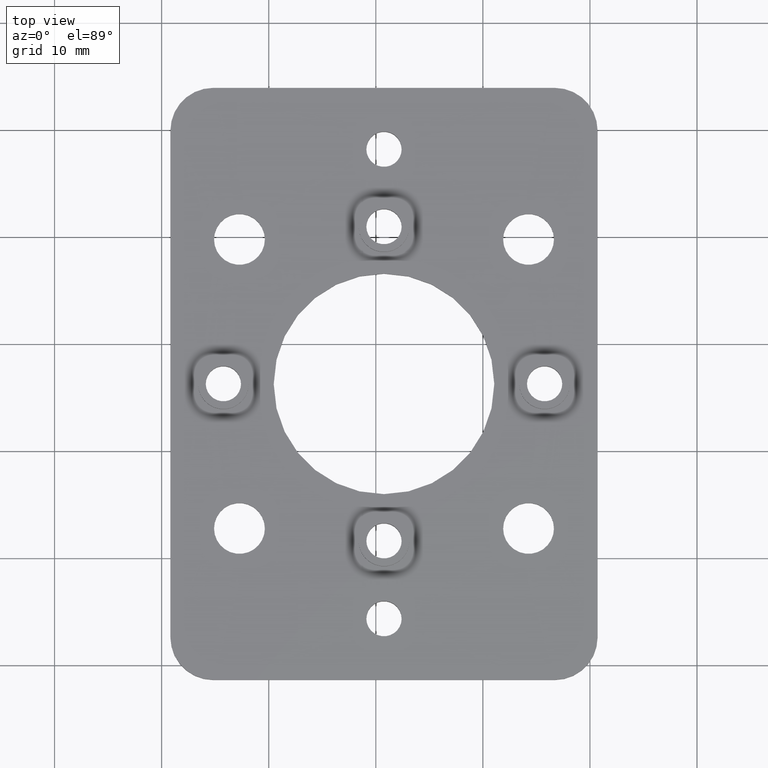
[diagram: clean part render]
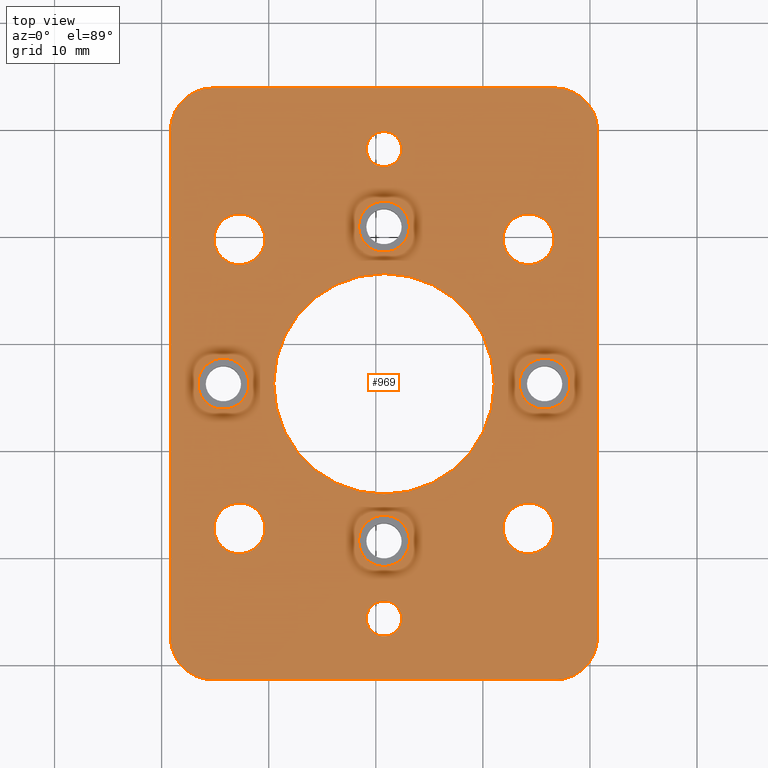
[diagram: same view with one face highlighted and labeled with its STEP entity id]
A machine part, top view. The second image highlights one B-rep face of the part: STEP entity #969.
In plain terms, the highlighted planar face has unit normal (0, 0, 1).
Its self-contained STEP definition (entity closure, byte-faithful):
#84=CARTESIAN_POINT('',(-17.583154132545623,-15.660901912274152,1.550000000000000));
#85=VERTEX_POINT('',#84);
#86=CARTESIAN_POINT('',(-19.233154132545625,-15.660901912274152,1.550000000000000));
#87=DIRECTION('',(0.0,0.0,-1.0));
#88=DIRECTION('',(-1.0,0.0,0.0));
#89=AXIS2_PLACEMENT_3D('',#86,#87,#88);
#90=CIRCLE('',#89,1.650000000000000);
#91=EDGE_CURVE('',#85,#85,#90,.T.);
#112=CARTESIAN_POINT('',(-17.583154132545623,28.189098087725849,1.550000000000000));
#113=VERTEX_POINT('',#112);
#114=CARTESIAN_POINT('',(-19.233154132545625,28.189098087725849,1.550000000000000));
#115=DIRECTION('',(0.0,0.0,-1.0));
#116=DIRECTION('',(-1.0,0.0,0.0));
#117=AXIS2_PLACEMENT_3D('',#114,#115,#116);
#118=CIRCLE('',#117,1.650000000000000);
#119=EDGE_CURVE('',#113,#113,#118,.T.);
#332=CARTESIAN_POINT('',(-1.858154132545627,6.264098087725847,1.550000000000000));
#333=VERTEX_POINT('',#332);
#334=CARTESIAN_POINT('',(-4.233154132545627,6.264098087725847,1.550000000000000));
#335=DIRECTION('',(0.0,0.0,-1.0));
#336=DIRECTION('',(-1.0,0.0,0.0));
#337=AXIS2_PLACEMENT_3D('',#334,#335,#336);
#338=CIRCLE('',#337,2.375000000000000);
#339=EDGE_CURVE('',#333,#333,#338,.T.);
#372=CARTESIAN_POINT('',(-31.858154132545629,6.264098087725847,1.550000000000000));
#373=VERTEX_POINT('',#372);
#374=CARTESIAN_POINT('',(-34.233154132545629,6.264098087725847,1.550000000000000));
#375=DIRECTION('',(0.0,0.0,-1.0));
#376=DIRECTION('',(-1.0,0.0,0.0));
#377=AXIS2_PLACEMENT_3D('',#374,#375,#376);
#378=CIRCLE('',#377,2.375000000000000);
#379=EDGE_CURVE('',#373,#373,#378,.T.);
#412=CARTESIAN_POINT('',(-16.858154132545625,-8.410901912274154,1.550000000000000));
#413=VERTEX_POINT('',#412);
#414=CARTESIAN_POINT('',(-19.233154132545625,-8.410901912274154,1.550000000000000));
#415=DIRECTION('',(0.0,0.0,-1.0));
#416=DIRECTION('',(-1.0,0.0,0.0));
#417=AXIS2_PLACEMENT_3D('',#414,#415,#416);
#418=CIRCLE('',#417,2.375000000000000);
#419=EDGE_CURVE('',#413,#413,#418,.T.);
#452=CARTESIAN_POINT('',(-16.858154132545625,20.939098087725849,1.550000000000000));
#453=VERTEX_POINT('',#452);
#454=CARTESIAN_POINT('',(-19.233154132545625,20.939098087725849,1.550000000000000));
#455=DIRECTION('',(0.0,0.0,-1.0));
#456=DIRECTION('',(-1.0,0.0,0.0));
#457=AXIS2_PLACEMENT_3D('',#454,#455,#456);
#458=CIRCLE('',#457,2.375000000000000);
#459=EDGE_CURVE('',#453,#453,#458,.T.);
#492=CARTESIAN_POINT('',(-8.933154132545624,6.264098087725848,1.550000000000000));
#493=VERTEX_POINT('',#492);
#494=CARTESIAN_POINT('',(-19.233154132545625,6.264098087725847,1.550000000000000));
#495=DIRECTION('',(0.0,0.0,-1.0));
#496=DIRECTION('',(-1.0,0.0,0.0));
#497=AXIS2_PLACEMENT_3D('',#494,#495,#496);
#498=CIRCLE('',#497,10.300000000000001);
#499=EDGE_CURVE('',#493,#493,#498,.T.);
#520=CARTESIAN_POINT('',(-30.358154132545614,-7.235901912274155,1.550000000000000));
#521=VERTEX_POINT('',#520);
#522=CARTESIAN_POINT('',(-32.733154132545614,-7.235901912274155,1.550000000000000));
#523=DIRECTION('',(0.0,0.0,-1.0));
#524=DIRECTION('',(-1.0,0.0,0.0));
#525=AXIS2_PLACEMENT_3D('',#522,#523,#524);
#526=CIRCLE('',#525,2.375000000000000);
#527=EDGE_CURVE('',#521,#521,#526,.T.);
#548=CARTESIAN_POINT('',(-3.358154132545621,-7.235901912274159,1.550000000000000));
#549=VERTEX_POINT('',#548);
#550=CARTESIAN_POINT('',(-5.733154132545622,-7.235901912274159,1.550000000000000));
#551=DIRECTION('',(0.0,0.0,-1.0));
#552=DIRECTION('',(-1.0,0.0,0.0));
#553=AXIS2_PLACEMENT_3D('',#550,#551,#552);
#554=CIRCLE('',#553,2.375000000000000);
#555=EDGE_CURVE('',#549,#549,#554,.T.);
#576=CARTESIAN_POINT('',(-3.358154132545622,19.764098087725838,1.550000000000000));
#577=VERTEX_POINT('',#576);
#578=CARTESIAN_POINT('',(-5.733154132545622,19.764098087725838,1.550000000000000));
#579=DIRECTION('',(0.0,0.0,-1.0));
#580=DIRECTION('',(-1.0,0.0,0.0));
#581=AXIS2_PLACEMENT_3D('',#578,#579,#580);
#582=CIRCLE('',#581,2.375000000000000);
#583=EDGE_CURVE('',#577,#577,#582,.T.);
#604=CARTESIAN_POINT('',(-30.358154132545625,19.764098087725845,1.550000000000000));
#605=VERTEX_POINT('',#604);
#606=CARTESIAN_POINT('',(-32.733154132545621,19.764098087725845,1.550000000000000));
#607=DIRECTION('',(0.0,0.0,-1.0));
#608=DIRECTION('',(-1.0,0.0,0.0));
#609=AXIS2_PLACEMENT_3D('',#606,#607,#608);
#610=CIRCLE('',#609,2.375000000000000);
#611=EDGE_CURVE('',#605,#605,#610,.T.);
#621=CARTESIAN_POINT('',(-35.183154132545631,33.914098087725847,1.550000000000000));
#622=VERTEX_POINT('',#621);
#623=CARTESIAN_POINT('',(-3.283154132545636,33.914098087725847,1.550000000000000));
#624=VERTEX_POINT('',#623);
#625=CARTESIAN_POINT('',(-35.183154132545631,33.914098087725847,1.550000000000000));
#626=DIRECTION('',(1.0,0.0,0.0));
#627=VECTOR('',#626,31.899999999999995);
#628=LINE('',#625,#627);
#629=EDGE_CURVE('',#622,#624,#628,.T.);
#661=CARTESIAN_POINT('',(0.716845867454365,29.914098087725847,1.550000000000000));
#662=VERTEX_POINT('',#661);
#663=CARTESIAN_POINT('',(-3.283154132545636,29.914098087725847,1.550000000000000));
#664=DIRECTION('',(0.0,0.0,-1.0));
#665=DIRECTION('',(1.0,0.0,0.0));
#666=AXIS2_PLACEMENT_3D('',#663,#664,#665);
#667=CIRCLE('',#666,4.0);
#668=EDGE_CURVE('',#624,#662,#667,.T.);
#694=CARTESIAN_POINT('',(0.716845867454368,-17.385901912274157,1.550000000000000));
#695=VERTEX_POINT('',#694);
#696=CARTESIAN_POINT('',(0.716845867454365,29.914098087725847,1.550000000000000));
#697=DIRECTION('',(0.0,-1.0,0.0));
#698=VECTOR('',#697,47.300000000000004);
#699=LINE('',#696,#698);
#700=EDGE_CURVE('',#662,#695,#699,.T.);
#725=CARTESIAN_POINT('',(-3.283154132545632,-21.385901912274157,1.550000000000000));
#726=VERTEX_POINT('',#725);
#727=CARTESIAN_POINT('',(-3.283154132545633,-17.385901912274157,1.550000000000000));
#728=DIRECTION('',(0.0,0.0,-1.0));
#729=DIRECTION('',(0.0,-1.0,0.0));
#730=AXIS2_PLACEMENT_3D('',#727,#728,#729);
#731=CIRCLE('',#730,4.0);
#732=EDGE_CURVE('',#695,#726,#731,.T.);
#758=CARTESIAN_POINT('',(-35.183154132545624,-21.385901912274154,1.550000000000000));
#759=VERTEX_POINT('',#758);
#760=CARTESIAN_POINT('',(-3.283154132545632,-21.385901912274157,1.550000000000000));
#761=DIRECTION('',(-1.0,0.0,0.0));
#762=VECTOR('',#761,31.899999999999991);
#763=LINE('',#760,#762);
#764=EDGE_CURVE('',#726,#759,#763,.T.);
#789=CARTESIAN_POINT('',(-39.183154132545624,-17.385901912274157,1.550000000000000));
#790=VERTEX_POINT('',#789);
#791=CARTESIAN_POINT('',(-35.183154132545624,-17.385901912274157,1.550000000000000));
#792=DIRECTION('',(0.0,0.0,-1.0));
#793=DIRECTION('',(-1.0,0.0,0.0));
#794=AXIS2_PLACEMENT_3D('',#791,#792,#793);
#795=CIRCLE('',#794,4.0);
#796=EDGE_CURVE('',#759,#790,#795,.T.);
#822=CARTESIAN_POINT('',(-39.183154132545624,29.914098087725847,1.550000000000000));
#823=VERTEX_POINT('',#822);
#824=CARTESIAN_POINT('',(-39.183154132545624,-17.385901912274157,1.550000000000000));
#825=DIRECTION('',(0.0,1.0,0.0));
#826=VECTOR('',#825,47.300000000000004);
#827=LINE('',#824,#826);
#828=EDGE_CURVE('',#790,#823,#827,.T.);
#853=CARTESIAN_POINT('',(-35.183154132545631,29.914098087725847,1.550000000000000));
#854=DIRECTION('',(0.0,0.0,-1.0));
#855=DIRECTION('',(0.0,1.0,0.0));
#856=AXIS2_PLACEMENT_3D('',#853,#854,#855);
#857=CIRCLE('',#856,4.0);
#858=EDGE_CURVE('',#823,#622,#857,.T.);
#921=CARTESIAN_POINT('',(-19.233154132545629,6.264098087725850,1.550000000000000));
#922=DIRECTION('',(0.0,0.0,1.0));
#923=DIRECTION('',(1.0,0.0,0.0));
#924=AXIS2_PLACEMENT_3D('',#921,#922,#923);
#925=PLANE('',#924);
#926=ORIENTED_EDGE('',*,*,#629,.F.);
#927=ORIENTED_EDGE('',*,*,#858,.F.);
#928=ORIENTED_EDGE('',*,*,#828,.F.);
#929=ORIENTED_EDGE('',*,*,#796,.F.);
#930=ORIENTED_EDGE('',*,*,#764,.F.);
#931=ORIENTED_EDGE('',*,*,#732,.F.);
#932=ORIENTED_EDGE('',*,*,#700,.F.);
#933=ORIENTED_EDGE('',*,*,#668,.F.);
#934=EDGE_LOOP('',(#926,#927,#928,#929,#930,#931,#932,#933));
#935=FACE_OUTER_BOUND('',#934,.T.);
#936=ORIENTED_EDGE('',*,*,#91,.T.);
#937=EDGE_LOOP('',(#936));
#938=FACE_BOUND('',#937,.T.);
#939=ORIENTED_EDGE('',*,*,#119,.T.);
#940=EDGE_LOOP('',(#939));
#941=FACE_BOUND('',#940,.T.);
#942=ORIENTED_EDGE('',*,*,#339,.T.);
#943=EDGE_LOOP('',(#942));
#944=FACE_BOUND('',#943,.T.);
#945=ORIENTED_EDGE('',*,*,#379,.T.);
#946=EDGE_LOOP('',(#945));
#947=FACE_BOUND('',#946,.T.);
#948=ORIENTED_EDGE('',*,*,#419,.T.);
#949=EDGE_LOOP('',(#948));
#950=FACE_BOUND('',#949,.T.);
#951=ORIENTED_EDGE('',*,*,#459,.T.);
#952=EDGE_LOOP('',(#951));
#953=FACE_BOUND('',#952,.T.);
#954=ORIENTED_EDGE('',*,*,#499,.T.);
#955=EDGE_LOOP('',(#954));
#956=FACE_BOUND('',#955,.T.);
#957=ORIENTED_EDGE('',*,*,#527,.T.);
#958=EDGE_LOOP('',(#957));
#959=FACE_BOUND('',#958,.T.);
#960=ORIENTED_EDGE('',*,*,#555,.T.);
#961=EDGE_LOOP('',(#960));
#962=FACE_BOUND('',#961,.T.);
#963=ORIENTED_EDGE('',*,*,#583,.T.);
#964=EDGE_LOOP('',(#963));
#965=FACE_BOUND('',#964,.T.);
#966=ORIENTED_EDGE('',*,*,#611,.T.);
#967=EDGE_LOOP('',(#966));
#968=FACE_BOUND('',#967,.T.);
#969=ADVANCED_FACE('',(#935,#938,#941,#944,#947,#950,#953,#956,#959,#962,#965,#968),#925,.T.);